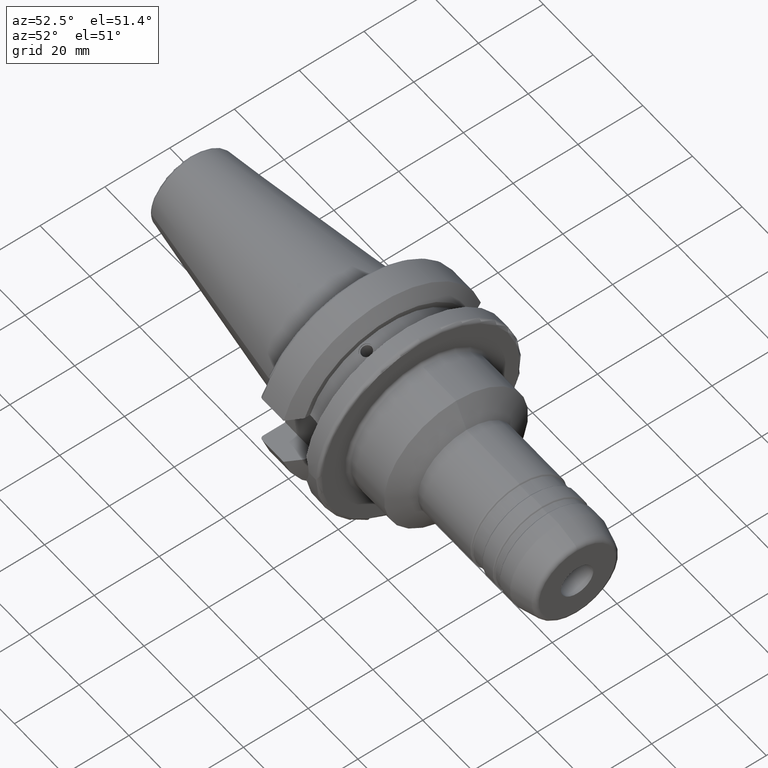
[diagram: clean part render]
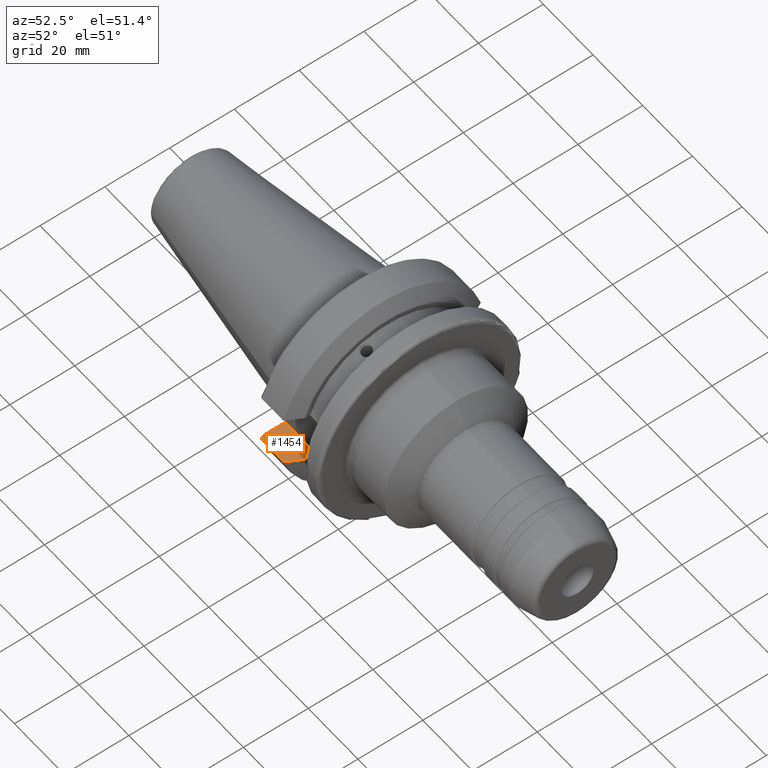
[diagram: same view with one face highlighted and labeled with its STEP entity id]
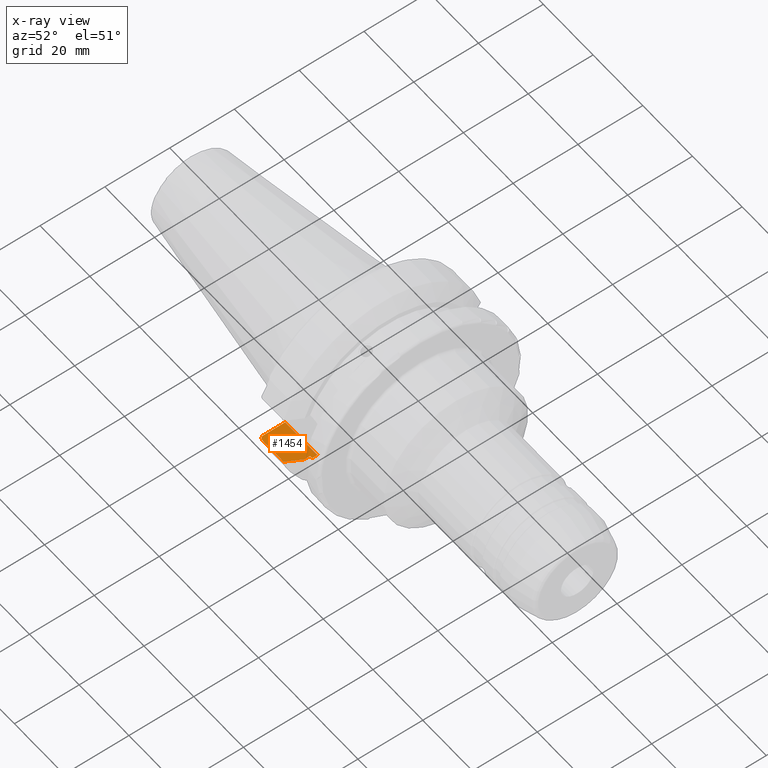
[diagram: x-ray of the same camera — body ghosted, the highlighted face saturated]
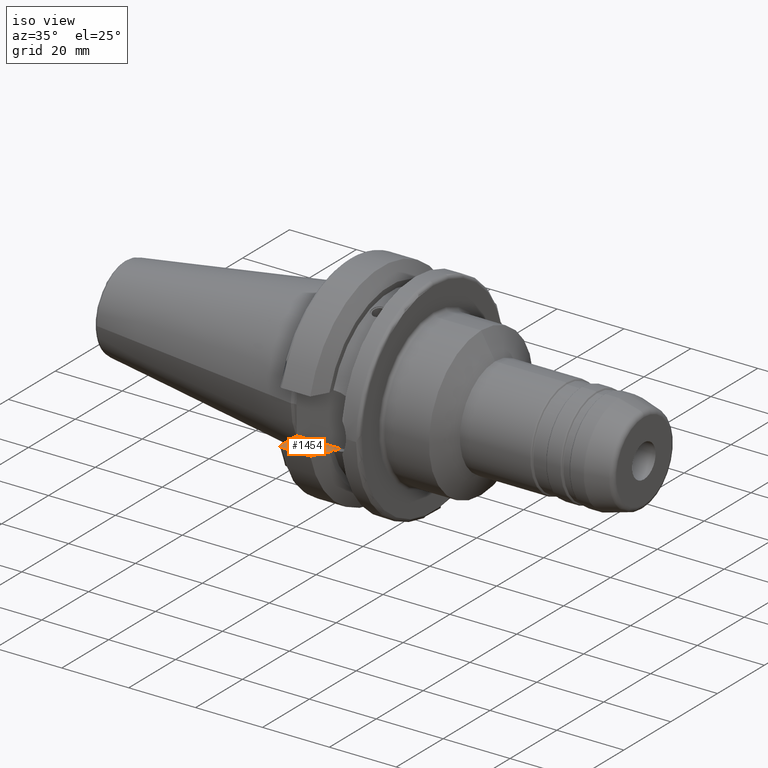
[diagram: same view with one face highlighted and labeled with its STEP entity id]
A machine part, auxiliary view. The second image highlights one B-rep face of the part: STEP entity #1454.
The next image is the same camera in x-ray: the body ghosted, the highlighted face saturated — about 2% of this face is hidden behind the body in this view.
A second angle (iso view) of the same face is appended — the face is thin or edge-on in the first view.
In plain terms, the highlighted planar face has unit normal (-0, 0, 1).
Its self-contained STEP definition (entity closure, byte-faithful):
#16=(
BOUNDED_CURVE()
B_SPLINE_CURVE(2,(#2699,#2700,#2701),.UNSPECIFIED.,.F.,.F.)
B_SPLINE_CURVE_WITH_KNOTS((3,3),(0.,0.523582790832811),.UNSPECIFIED.)
CURVE()
GEOMETRIC_REPRESENTATION_ITEM()
RATIONAL_B_SPLINE_CURVE((1.,1.0030736009757,1.))
REPRESENTATION_ITEM('')
);
#46=PLANE('',#1646);
#108=B_SPLINE_CURVE_WITH_KNOTS('',3,(#2686,#2687,#2688,#2689,#2690,#2691,
#2692,#2693,#2694,#2695),.UNSPECIFIED.,.F.,.F.,(4,2,2,2,4),(0.,0.0366169489027566,
0.0738743445372396,0.111946181815504,0.150751871388631),.UNSPECIFIED.);
#190=FACE_OUTER_BOUND('',#289,.T.);
#289=EDGE_LOOP('',(#1187,#1188,#1189,#1190,#1191,#1192,#1193,#1194));
#369=LINE('',#2652,#442);
#375=LINE('',#2680,#448);
#376=LINE('',#2682,#449);
#377=LINE('',#2684,#450);
#378=LINE('',#2697,#451);
#379=LINE('',#2702,#452);
#442=VECTOR('',#2026,10.);
#448=VECTOR('',#2036,10.);
#449=VECTOR('',#2037,10.);
#450=VECTOR('',#2038,10.);
#451=VECTOR('',#2039,10.);
#452=VECTOR('',#2040,10.);
#650=VERTEX_POINT('',#2602);
#659=VERTEX_POINT('',#2650);
#666=VERTEX_POINT('',#2679);
#667=VERTEX_POINT('',#2681);
#668=VERTEX_POINT('',#2683);
#669=VERTEX_POINT('',#2685);
#670=VERTEX_POINT('',#2696);
#671=VERTEX_POINT('',#2698);
#844=EDGE_CURVE('',#659,#650,#369,.T.);
#852=EDGE_CURVE('',#650,#666,#375,.T.);
#853=EDGE_CURVE('',#659,#667,#376,.T.);
#854=EDGE_CURVE('',#668,#667,#377,.T.);
#855=EDGE_CURVE('',#669,#668,#108,.T.);
#856=EDGE_CURVE('',#670,#669,#378,.T.);
#857=EDGE_CURVE('',#671,#670,#16,.T.);
#858=EDGE_CURVE('',#666,#671,#379,.T.);
#1187=ORIENTED_EDGE('',*,*,#852,.F.);
#1188=ORIENTED_EDGE('',*,*,#844,.F.);
#1189=ORIENTED_EDGE('',*,*,#853,.T.);
#1190=ORIENTED_EDGE('',*,*,#854,.F.);
#1191=ORIENTED_EDGE('',*,*,#855,.F.);
#1192=ORIENTED_EDGE('',*,*,#856,.F.);
#1193=ORIENTED_EDGE('',*,*,#857,.F.);
#1194=ORIENTED_EDGE('',*,*,#858,.F.);
#1454=ADVANCED_FACE('',(#190),#46,.T.);
#1646=AXIS2_PLACEMENT_3D('',#2678,#2034,#2035);
#2026=DIRECTION('',(0.,-1.,0.));
#2034=DIRECTION('center_axis',(-8.57315076930623E-17,0.,1.));
#2035=DIRECTION('ref_axis',(-1.,0.,-8.57315076930623E-17));
#2036=DIRECTION('',(-1.,0.,0.));
#2037=DIRECTION('',(-1.,0.,-8.57315076930623E-17));
#2038=DIRECTION('',(0.,1.,0.));
#2039=DIRECTION('',(-1.,0.,0.));
#2040=DIRECTION('',(0.,-1.,0.));
#2602=CARTESIAN_POINT('',(14.95,-24.1960224003864,-8.05));
#2650=CARTESIAN_POINT('',(14.95,-22.6,-8.05));
#2652=CARTESIAN_POINT('',(14.95,-22.6,-8.05));
#2678=CARTESIAN_POINT('Origin',(14.95,-22.6,-8.05));
#2679=CARTESIAN_POINT('',(14.1,-24.1960224003864,-8.05));
#2680=CARTESIAN_POINT('',(16.6,-24.1960224003864,-8.05));
#2681=CARTESIAN_POINT('',(1.99999999999999,-22.6,-8.05));
#2682=CARTESIAN_POINT('',(14.95,-22.6,-8.05));
#2683=CARTESIAN_POINT('',(1.99999999999999,-29.4184890842477,-8.05));
#2684=CARTESIAN_POINT('',(1.99999999999999,3.95,-8.05));
#2685=CARTESIAN_POINT('',(2.99999999999999,-30.4540227227866,-8.05));
#2686=CARTESIAN_POINT('Ctrl Pts',(3.,-30.4540227227866,-8.05));
#2687=CARTESIAN_POINT('Ctrl Pts',(2.87794350365748,-30.4540227227866,-8.05));
#2688=CARTESIAN_POINT('Ctrl Pts',(2.73442803339431,-30.4247631098996,-8.05));
#2689=CARTESIAN_POINT('Ctrl Pts',(2.50758665841081,-30.3289456947341,-8.05));
#2690=CARTESIAN_POINT('Ctrl Pts',(2.38465986426588,-30.2446912007727,-8.05));
#2691=CARTESIAN_POINT('Ctrl Pts',(2.2089547883793,-30.0653098968133,-8.05));
#2692=CARTESIAN_POINT('Ctrl Pts',(2.12587454939785,-29.9376810968085,-8.05));
#2693=CARTESIAN_POINT('Ctrl Pts',(2.02950258743517,-29.7002346307938,-8.05));
#2694=CARTESIAN_POINT('Ctrl Pts',(1.99999999999999,-29.5478413828248,-8.05));
#2695=CARTESIAN_POINT('Ctrl Pts',(1.99999999999999,-29.4184890842477,-8.05));
#2696=CARTESIAN_POINT('',(11.5690363073382,-30.4540227227866,-8.05));
#2697=CARTESIAN_POINT('',(7.28451815366907,-30.4540227227866,-8.05));
#2698=CARTESIAN_POINT('',(14.1,-25.8705666509569,-8.05));
#2699=CARTESIAN_POINT('Ctrl Pts',(14.1,-25.8705666509569,-8.05));
#2700=CARTESIAN_POINT('Ctrl Pts',(12.9374976962935,-27.9899702651817,-8.05));
#2701=CARTESIAN_POINT('Ctrl Pts',(11.5690363073382,-30.4540227227866,-8.05));
#2702=CARTESIAN_POINT('',(14.1,1.45,-8.05));